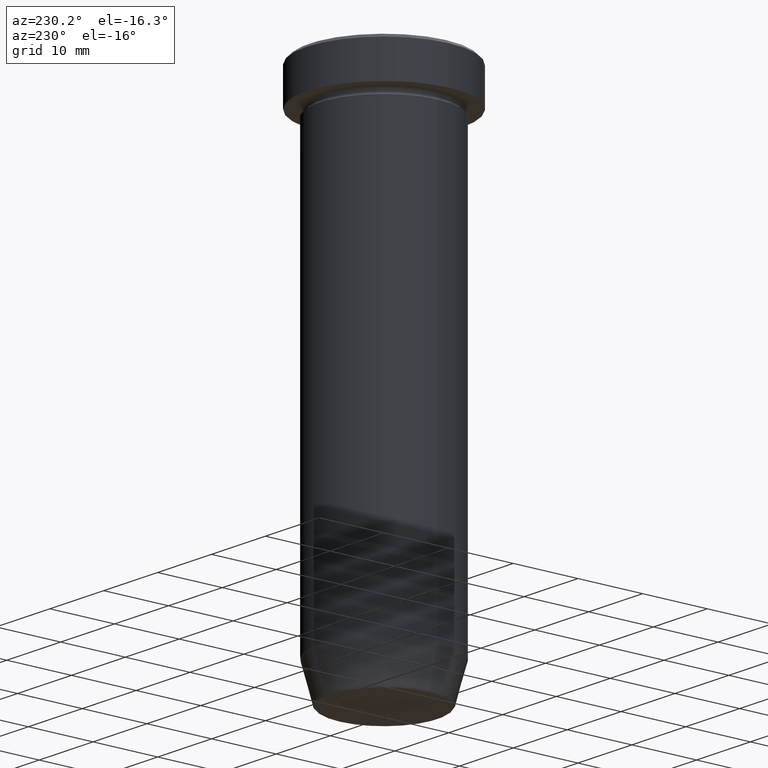
[diagram: clean part render]
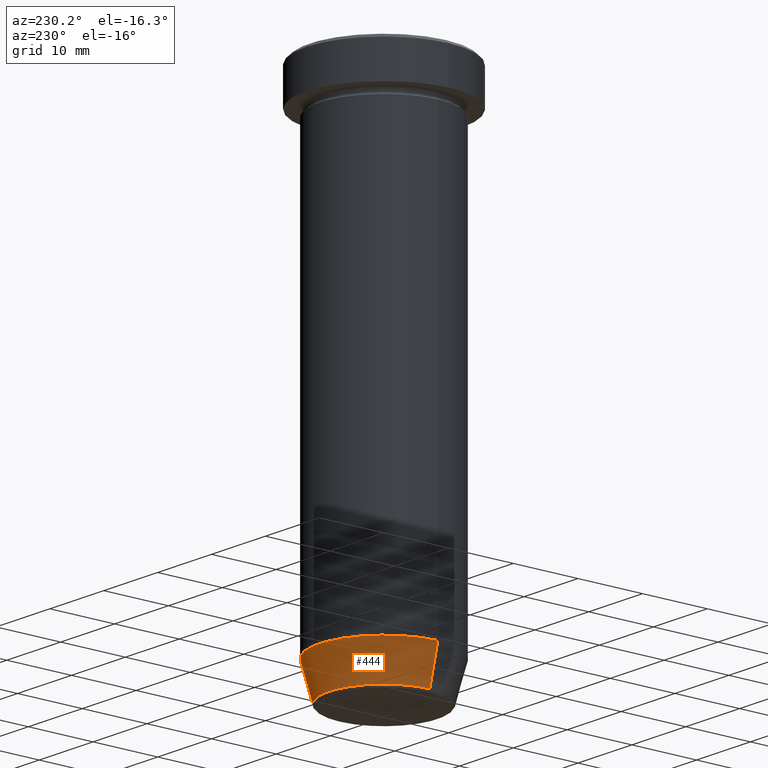
[diagram: same view with one face highlighted and labeled with its STEP entity id]
A machine part, auxiliary view. The second image highlights one B-rep face of the part: STEP entity #444.
In plain terms, the highlighted conical surface has half-angle 15 deg.
Its self-contained STEP definition (entity closure, byte-faithful):
#10 = CARTESIAN_POINT ( 'NONE',  ( -9.999999999999998224, 1.224646799147353059E-15, -74.00000000000000000 ) ) ;
#41 = ORIENTED_EDGE ( 'NONE', *, *, #576, .F. ) ;
#47 = EDGE_CURVE ( 'NONE', #517, #115, #577, .T. ) ;
#79 = CARTESIAN_POINT ( 'NONE',  ( 0.000000000000000000, 0.000000000000000000, -79.62940952255127058 ) ) ;
#101 = CARTESIAN_POINT ( 'NONE',  ( 9.999999999999998224, 0.000000000000000000, -74.00000000000000000 ) ) ;
#102 = EDGE_CURVE ( 'NONE', #115, #580, #186, .T. ) ;
#103 = FACE_OUTER_BOUND ( 'NONE', #204, .T. ) ;
#115 = VERTEX_POINT ( 'NONE', #372 ) ;
#131 = CIRCLE ( 'NONE', #419, 9.999999999999998224 ) ;
#182 = VECTOR ( 'NONE', #229, 1000.000000000000000 ) ;
#186 = LINE ( 'NONE', #464, #192 ) ;
#192 = VECTOR ( 'NONE', #424, 1000.000000000000000 ) ;
#204 = EDGE_LOOP ( 'NONE', ( #581, #218, #443, #41 ) ) ;
#218 = ORIENTED_EDGE ( 'NONE', *, *, #102, .T. ) ;
#222 = DIRECTION ( 'NONE',  ( -0.000000000000000000, -0.000000000000000000, 1.000000000000000000 ) ) ;
#229 = DIRECTION ( 'NONE',  ( 0.2588190451025209060, 0.000000000000000000, 0.9659258262890682012 ) ) ;
#235 = CARTESIAN_POINT ( 'NONE',  ( 8.392304845413260495, 0.000000000000000000, -80.00000000000000000 ) ) ;
#238 = CARTESIAN_POINT ( 'NONE',  ( 0.000000000000000000, 0.000000000000000000, -74.00000000000000000 ) ) ;
#239 = DIRECTION ( 'NONE',  ( -0.000000000000000000, -0.000000000000000000, 1.000000000000000000 ) ) ;
#280 = CARTESIAN_POINT ( 'NONE',  ( 8.491604264568316296, 0.000000000000000000, -79.62940952255127058 ) ) ;
#281 = AXIS2_PLACEMENT_3D ( 'NONE', #79, #222, #316 ) ;
#285 = AXIS2_PLACEMENT_3D ( 'NONE', #500, #239, #462 ) ;
#291 = CONICAL_SURFACE ( 'NONE', #285, 8.392304845413260495, 0.2617993877991495744 ) ;
#316 = DIRECTION ( 'NONE',  ( -1.000000000000000000, 0.000000000000000000, 0.000000000000000000 ) ) ;
#372 = CARTESIAN_POINT ( 'NONE',  ( -8.491604264568316296, 1.132284198685156584E-15, -79.62940952255127058 ) ) ;
#381 = LINE ( 'NONE', #235, #182 ) ;
#395 = EDGE_CURVE ( 'NONE', #436, #580, #131, .T. ) ;
#419 = AXIS2_PLACEMENT_3D ( 'NONE', #238, #473, #583 ) ;
#424 = DIRECTION ( 'NONE',  ( -0.2588190451025209060, 3.169619151431766790E-17, 0.9659258262890682012 ) ) ;
#436 = VERTEX_POINT ( 'NONE', #101 ) ;
#443 = ORIENTED_EDGE ( 'NONE', *, *, #395, .F. ) ;
#444 = ADVANCED_FACE ( 'NONE', ( #103 ), #291, .T. ) ;
#462 = DIRECTION ( 'NONE',  ( 1.000000000000000000, 0.000000000000000000, 0.000000000000000000 ) ) ;
#464 = CARTESIAN_POINT ( 'NONE',  ( -8.392304845413260495, 1.027760926640417114E-15, -80.00000000000000000 ) ) ;
#473 = DIRECTION ( 'NONE',  ( -0.000000000000000000, -0.000000000000000000, 1.000000000000000000 ) ) ;
#500 = CARTESIAN_POINT ( 'NONE',  ( 0.000000000000000000, 0.000000000000000000, -80.00000000000000000 ) ) ;
#517 = VERTEX_POINT ( 'NONE', #280 ) ;
#576 = EDGE_CURVE ( 'NONE', #517, #436, #381, .T. ) ;
#577 = CIRCLE ( 'NONE', #281, 8.491604264568316296 ) ;
#580 = VERTEX_POINT ( 'NONE', #10 ) ;
#581 = ORIENTED_EDGE ( 'NONE', *, *, #47, .T. ) ;
#583 = DIRECTION ( 'NONE',  ( 1.000000000000000000, 0.000000000000000000, 0.000000000000000000 ) ) ;